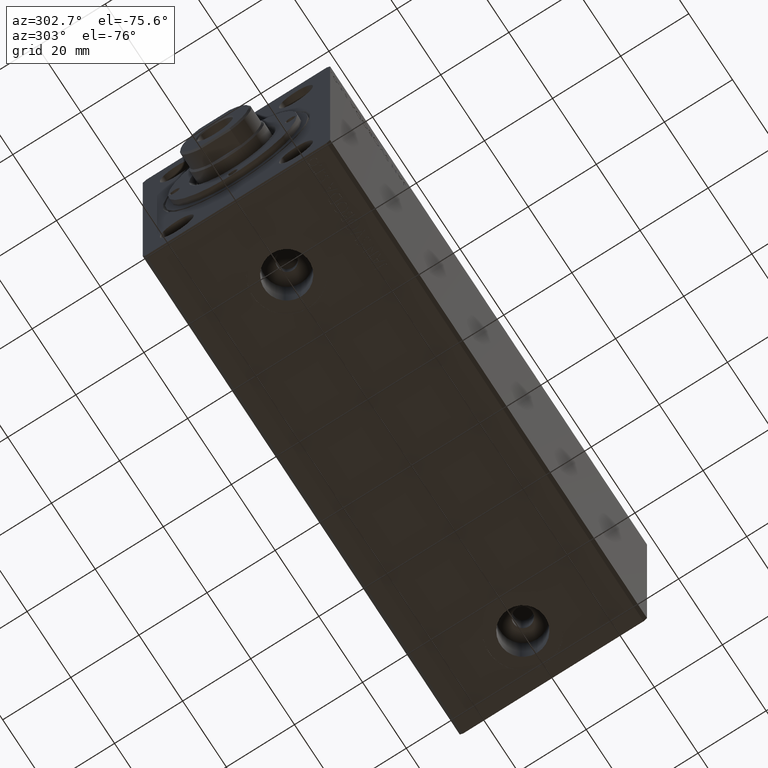
[diagram: clean part render]
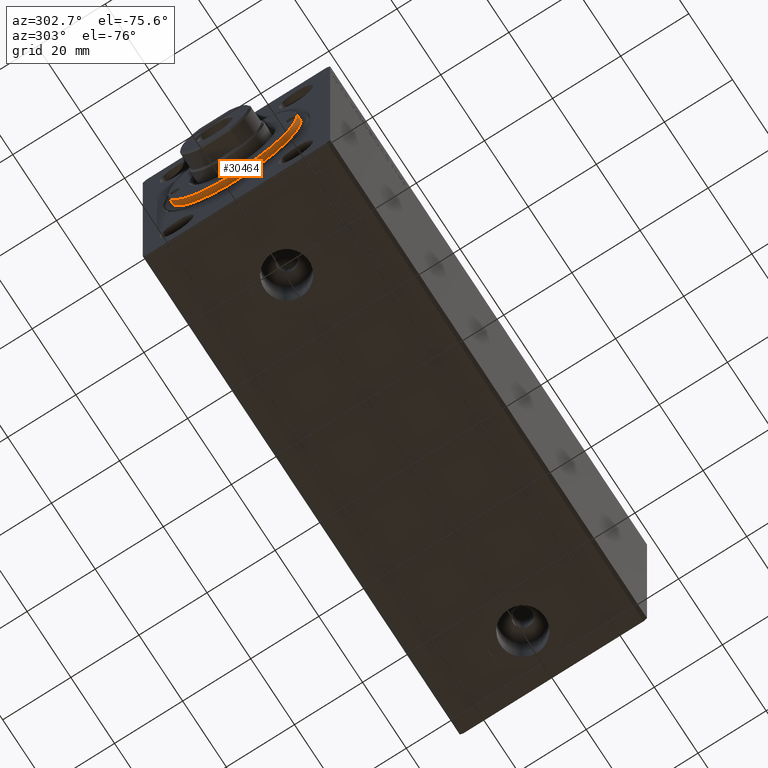
[diagram: same view with one face highlighted and labeled with its STEP entity id]
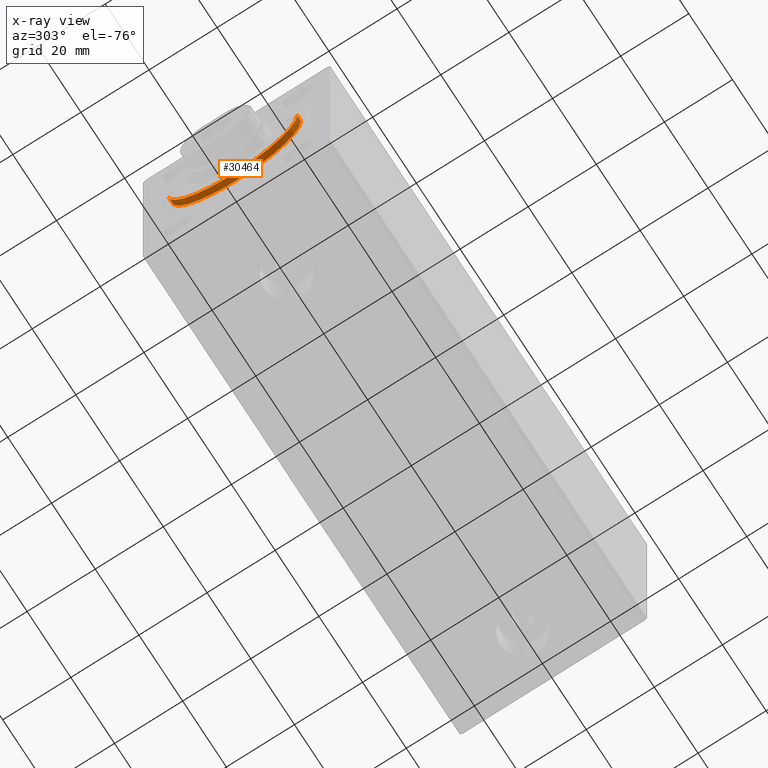
[diagram: x-ray of the same camera — body ghosted, the highlighted face saturated]
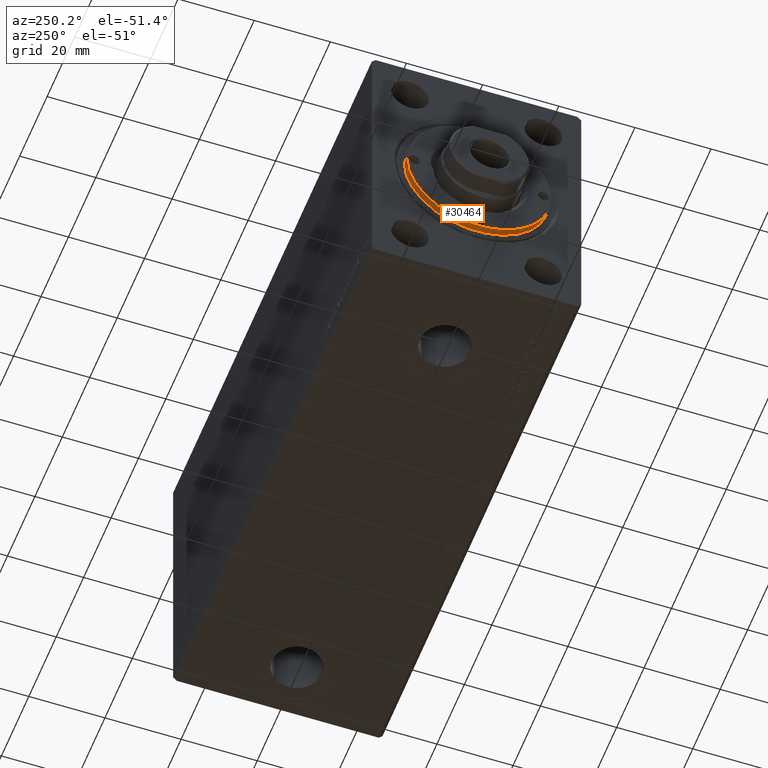
[diagram: same view with one face highlighted and labeled with its STEP entity id]
A machine part, auxiliary view. The second image highlights one B-rep face of the part: STEP entity #30464.
The next image is the same camera in x-ray: the body ghosted, the highlighted face saturated — about 0% of this face is hidden behind the body in this view.
A second angle (auxiliary view) of the same face is appended — the face is thin or edge-on in the first view.
In plain terms, the highlighted cylindrical surface (partial cylindrical patch) has radius 19 mm, axis along (1, -0, 0).
Its self-contained STEP definition (entity closure, byte-faithful):
#251 = DIRECTION ( 'NONE',  ( -0.000000000000000000, -0.000000000000000000, -1.000000000000000000 ) ) ;
#308 = EDGE_CURVE ( 'NONE', #38599, #18504, #3249, .T. ) ;
#418 = VECTOR ( 'NONE', #16847, 1000.000000000000000 ) ;
#922 = DIRECTION ( 'NONE',  ( 1.000000000000000000, 0.000000000000000000, 0.000000000000000000 ) ) ;
#3243 = DIRECTION ( 'NONE',  ( 0.000000000000000000, 0.000000000000000000, 1.000000000000000000 ) ) ;
#3249 = LINE ( 'NONE', #27550, #418 ) ;
#3830 = CARTESIAN_POINT ( 'NONE',  ( 0.000000000000000000, 0.000000000000000000, 66.79999999999999716 ) ) ;
#4171 = VERTEX_POINT ( 'NONE', #25688 ) ;
#4495 = DIRECTION ( 'NONE',  ( 0.000000000000000000, 0.000000000000000000, 1.000000000000000000 ) ) ;
#5858 = EDGE_CURVE ( 'NONE', #29522, #18504, #23987, .T. ) ;
#6951 = FACE_OUTER_BOUND ( 'NONE', #13976, .T. ) ;
#7670 = CIRCLE ( 'NONE', #20501, 19.00000000000000000 ) ;
#11187 = ORIENTED_EDGE ( 'NONE', *, *, #5858, .T. ) ;
#13558 = CARTESIAN_POINT ( 'NONE',  ( -19.00000000000000000, 0.000000000000000000, 66.79999999999999716 ) ) ;
#13976 = EDGE_LOOP ( 'NONE', ( #26747, #38758, #11187, #35693 ) ) ;
#16837 = CARTESIAN_POINT ( 'NONE',  ( -19.00000000000000000, 0.000000000000000000, 65.00000000000000000 ) ) ;
#16847 = DIRECTION ( 'NONE',  ( -0.000000000000000000, -0.000000000000000000, -1.000000000000000000 ) ) ;
#18280 = CARTESIAN_POINT ( 'NONE',  ( 19.00000000000000000, 2.326828918379970970E-15, 65.00000000000000000 ) ) ;
#18439 = DIRECTION ( 'NONE',  ( -0.000000000000000000, -0.000000000000000000, -1.000000000000000000 ) ) ;
#18504 = VERTEX_POINT ( 'NONE', #16837 ) ;
#19774 = EDGE_CURVE ( 'NONE', #4171, #29522, #35157, .T. ) ;
#20501 = AXIS2_PLACEMENT_3D ( 'NONE', #30008, #3243, #40694 ) ;
#23987 = CIRCLE ( 'NONE', #40352, 19.00000000000000000 ) ;
#25562 = CARTESIAN_POINT ( 'NONE',  ( 19.00000000000000000, 2.326828918379970970E-15, 66.79999999999999716 ) ) ;
#25688 = CARTESIAN_POINT ( 'NONE',  ( 19.00000000000000000, 2.326828918379970970E-15, 66.79999999999999716 ) ) ;
#26747 = ORIENTED_EDGE ( 'NONE', *, *, #33376, .F. ) ;
#27461 = DIRECTION ( 'NONE',  ( -1.000000000000000000, 0.000000000000000000, 0.000000000000000000 ) ) ;
#27550 = CARTESIAN_POINT ( 'NONE',  ( -19.00000000000000000, 0.000000000000000000, 66.79999999999999716 ) ) ;
#29522 = VERTEX_POINT ( 'NONE', #18280 ) ;
#29897 = AXIS2_PLACEMENT_3D ( 'NONE', #3830, #251, #27461 ) ;
#30008 = CARTESIAN_POINT ( 'NONE',  ( 0.000000000000000000, 0.000000000000000000, 66.79999999999999716 ) ) ;
#30464 = ADVANCED_FACE ( 'NONE', ( #6951 ), #34592, .T. ) ;
#30777 = VECTOR ( 'NONE', #18439, 1000.000000000000000 ) ;
#33376 = EDGE_CURVE ( 'NONE', #4171, #38599, #7670, .T. ) ;
#34592 = CYLINDRICAL_SURFACE ( 'NONE', #29897, 19.00000000000000000 ) ;
#35157 = LINE ( 'NONE', #25562, #30777 ) ;
#35693 = ORIENTED_EDGE ( 'NONE', *, *, #308, .F. ) ;
#38380 = CARTESIAN_POINT ( 'NONE',  ( 0.000000000000000000, 0.000000000000000000, 65.00000000000000000 ) ) ;
#38599 = VERTEX_POINT ( 'NONE', #13558 ) ;
#38758 = ORIENTED_EDGE ( 'NONE', *, *, #19774, .T. ) ;
#40352 = AXIS2_PLACEMENT_3D ( 'NONE', #38380, #4495, #922 ) ;
#40694 = DIRECTION ( 'NONE',  ( 1.000000000000000000, 0.000000000000000000, 0.000000000000000000 ) ) ;